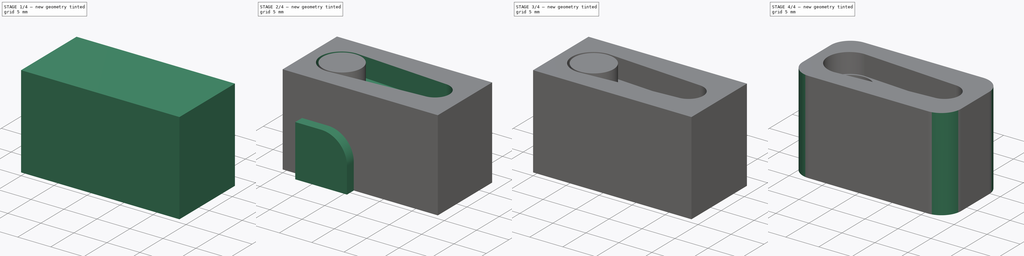
[diagram: build sequence overview — one tinted view per stage of 4, left to right]
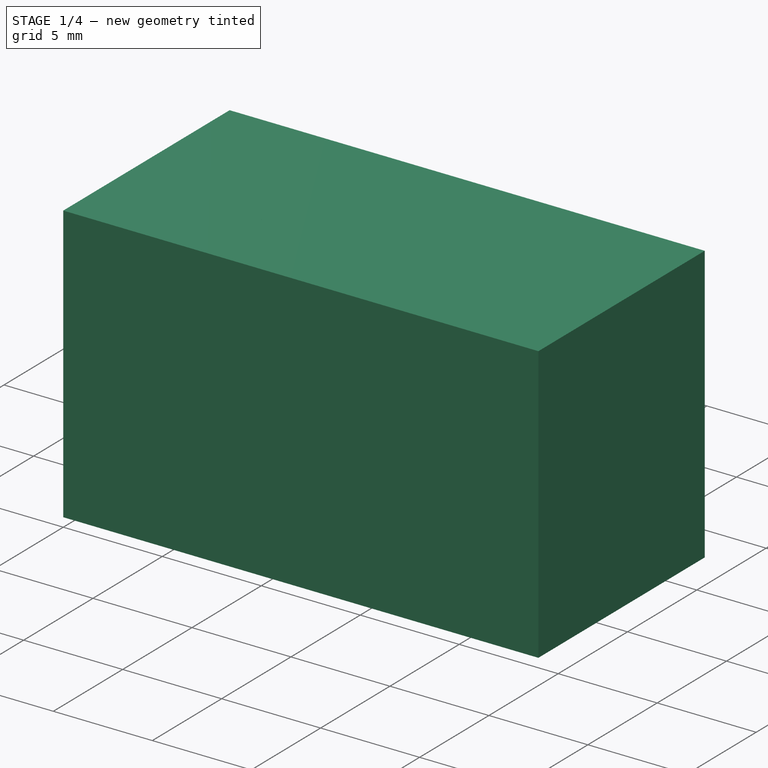
[diagram: stage 1 of 4 — iso view after this stage's code; geometry added in this stage tinted green]
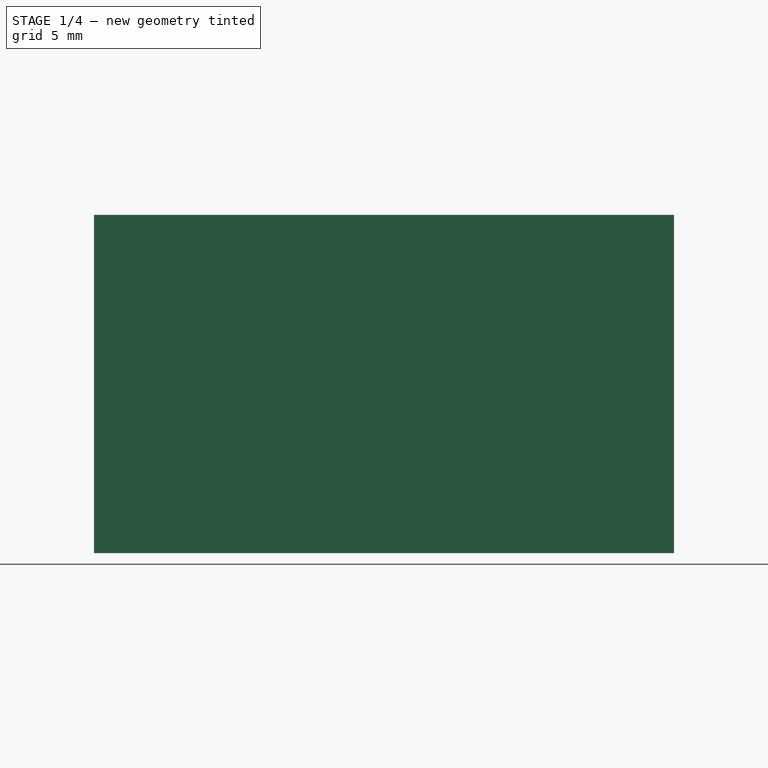
[diagram: stage 1 of 4 — front view after this stage's code; geometry added in this stage tinted green]
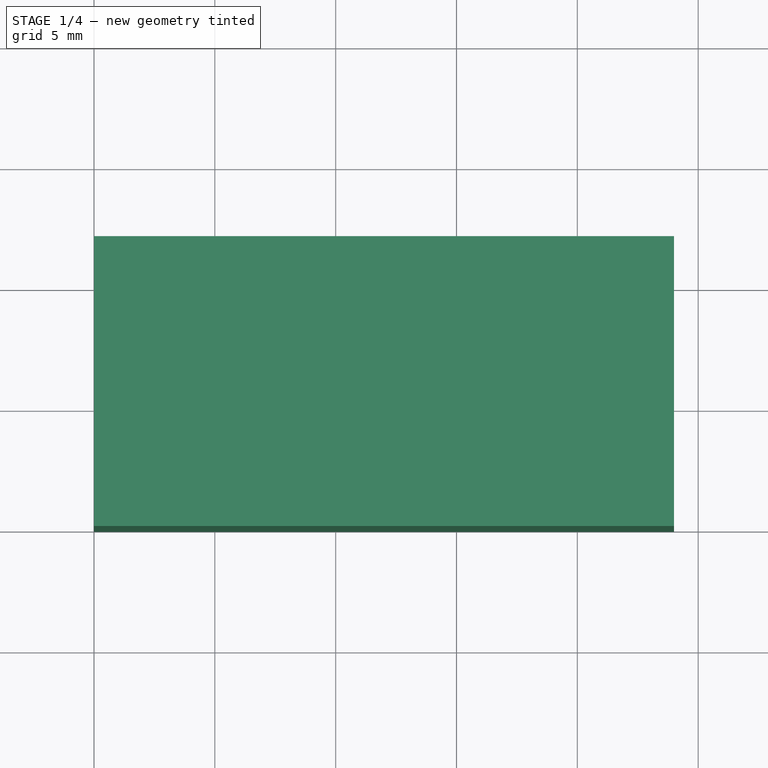
[diagram: stage 1 of 4 — top view after this stage's code; geometry added in this stage tinted green]
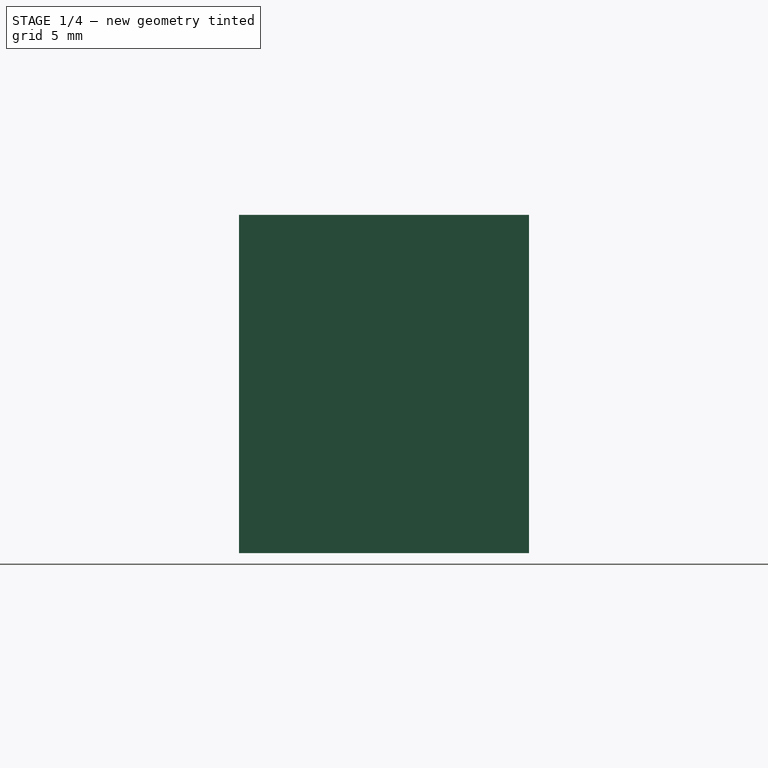
[diagram: stage 1 of 4 — right view after this stage's code; geometry added in this stage tinted green]
FCSTD DOCUMENT  (FreeCAD 0.17R13509 (Git))
Label: Engraneje_mover_motor-riego
License: CreativeCommons Attribution-ShareAlike
LicenseURL: http://creativecommons.org/licenses/by-sa/4.0/
objects: Part::Cylinder×2, Part::Box×2, Part::Fillet×2, Part::Cut×2, Part::MultiFuse×1, PartDesign::FeatureBase×1, Sketcher::SketchObject×1, PartDesign::Pocket×1, PartDesign::Body×1
note: 14 computed .brp shape members not serialized (recipe doc carries the construction recipe); baked Part::Feature solids carry a one-line shape summary decoded from their .brp

FEATURE [Part::Box] Box001  label="Cubo001"
  AttacherType = Attacher::AttachEngine3D
  Height = 14
  Length = 24
  Placement = pos=(-6,-6,0) rot=(0,0,1;0rad)
  Width = 12
FEATURE [PartDesign::FeatureBase] BaseFeature
  BaseFeature = -> Box001
FEATURE [Part::Cylinder] Cylinder001  label="Cilindro001"
  Angle = 360
  AttacherType = Attacher::AttachEngine3D
  Height = 5
  Placement = pos=(5,6,9) rot=(0,0,1;0rad)
  Radius = 3
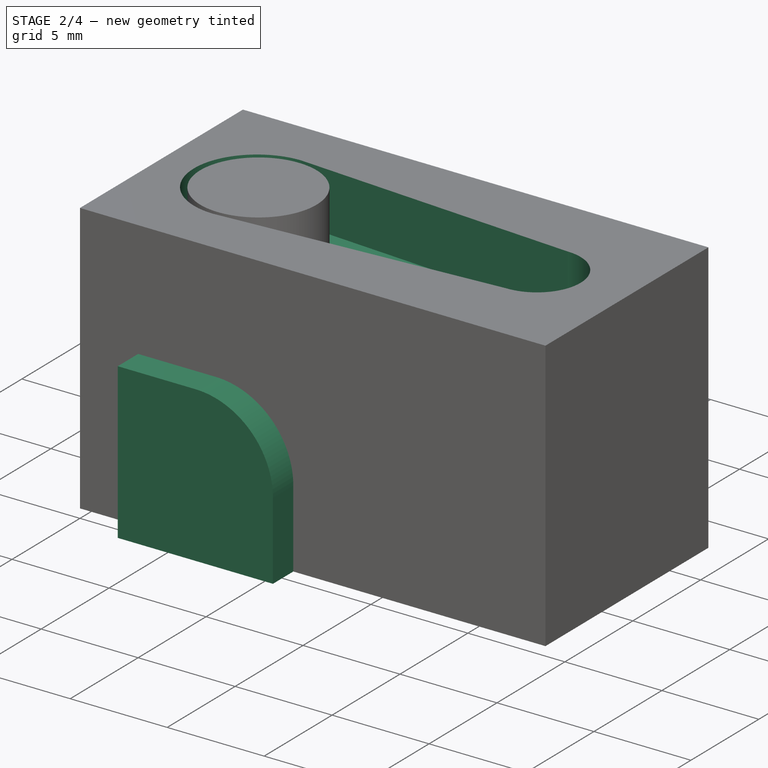
[diagram: stage 2 of 4 — iso view after this stage's code; geometry added in this stage tinted green]
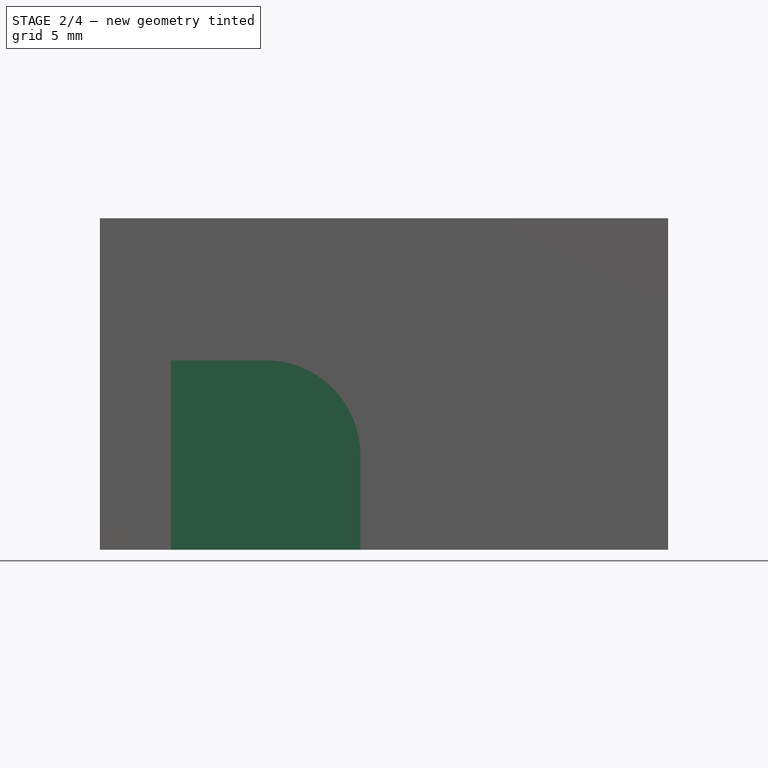
[diagram: stage 2 of 4 — front view after this stage's code; geometry added in this stage tinted green]
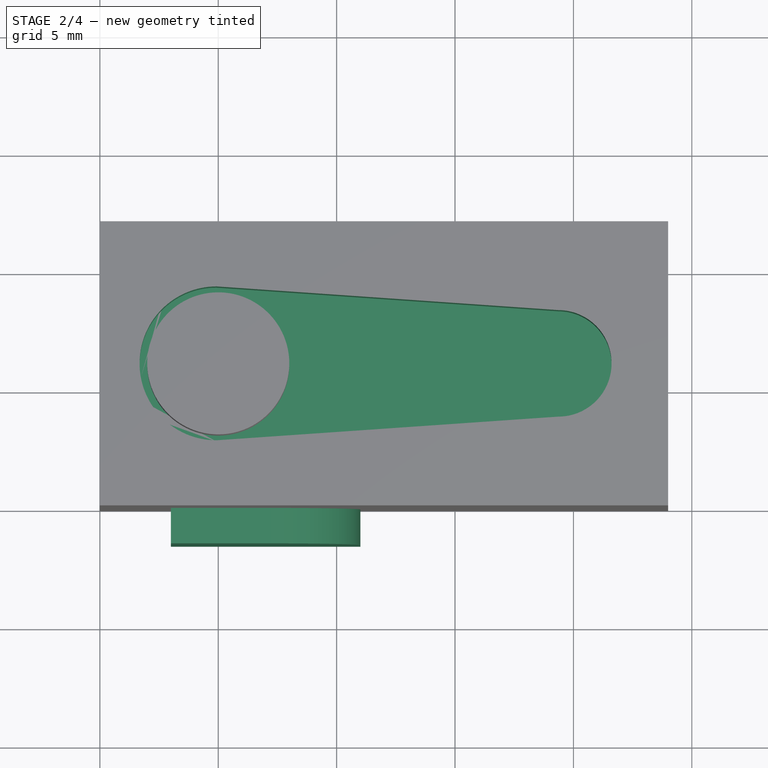
[diagram: stage 2 of 4 — top view after this stage's code; geometry added in this stage tinted green]
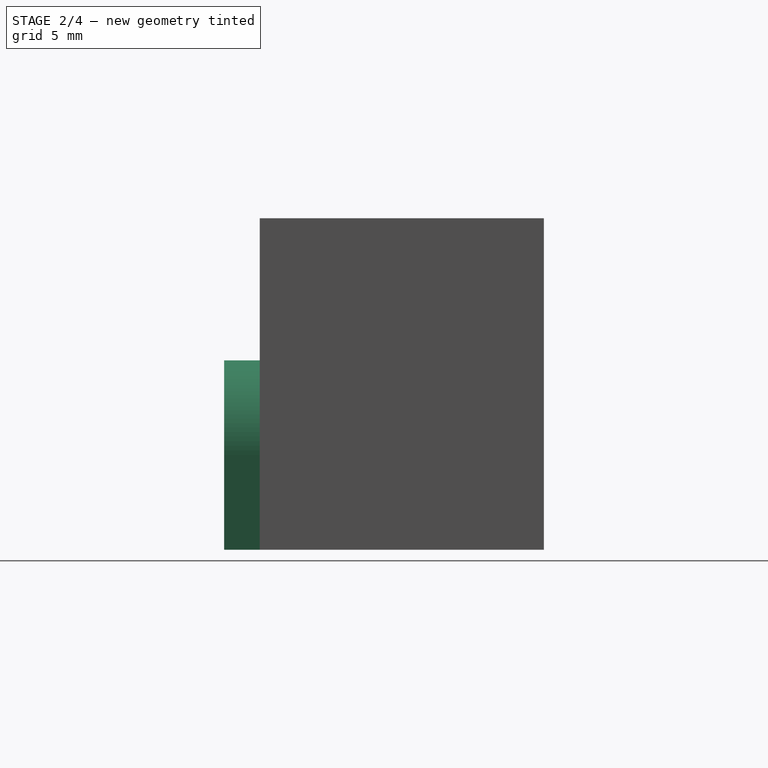
[diagram: stage 2 of 4 — right view after this stage's code; geometry added in this stage tinted green]
FEATURE [Part::Box] Box  label="Cubo"
  AttacherType = Attacher::AttachEngine3D
  Height = 8
  Length = 8
  Placement = pos=(3,-1.5,0) rot=(0,0,1;0rad)
  Width = 3
FEATURE [Part::Fillet] Fillet
  Base = -> Box
  Edges = 1 edges r=4: [Edge6]
FEATURE [Sketcher::SketchObject] Sketch
  ExternalGeometry = -> [BaseFeature]
  MapMode = 5
  Placement = pos=(0,0,14) rot=(0,0,1;0rad)
  Support = -> [BaseFeature]
  sketch-geometry (7):
    g0: LineSegment [constr] StartX=0 StartY=6 StartZ=0 EndX=20.1722 EndY=6 EndZ=0
    g1: LineSegment StartX=4.92586 StartY=9.25 StartZ=0 EndX=19.3613 EndY=8.25 EndZ=0
    g2: LineSegment StartX=4.92586 StartY=2.75 StartZ=0 EndX=19.3613 EndY=3.75 EndZ=0
    g3: ArcOfCircle CenterX=4.92586 CenterY=6 CenterZ=0 NormalX=0 NormalY=0 NormalZ=1 AngleXU=0 Radius=3.25 StartAngle=1.5708 EndAngle=4.71239
    g4: ArcOfCircle CenterX=19.3613 CenterY=6 CenterZ=0 NormalX=0 NormalY=0 NormalZ=1 AngleXU=0 Radius=2.25 StartAngle=4.71239 EndAngle=7.85398
    g5: LineSegment [constr] StartX=19.3613 StartY=8.25 StartZ=0 EndX=19.3613 EndY=3.75 EndZ=0
    g6: LineSegment [constr] StartX=4.92586 StartY=9.25 StartZ=0 EndX=4.92586 EndY=2.75 EndZ=0
  constraints (20):
    c: PointOnObject(g0,g-2)
    c: Horizontal(g0)
    c: Symmetric(g-1,g-3,g0)
    c: PointOnObject(g3,g0)
    c: Coincident(g3,g1)
    c: Coincident(g3,g2)
    c: PointOnObject(g4,g0)
    c: Coincident(g4,g1)
    c: Coincident(g4,g2)
    c: Equal(g1,g2)
    c: Radius(g3) = 3.25
    c: Radius(g4) = 2.25
    c: Distance(g1) = 14.47
    c: Coincident(g5,g1)
    c: Coincident(g5,g2)
    c: Coincident(g6,g1)
    c: Coincident(g6,g2)
    c: Vertical(g6)
    c: PointOnObject(g4,g5)
    c: PointOnObject(g3,g6)
FEATURE [PartDesign::Pocket] Pocket
  BaseFeature = -> BaseFeature
  Length = 3
  Length2 = 100
  Profile = -> Sketch
  Refine = true
  Type = 0
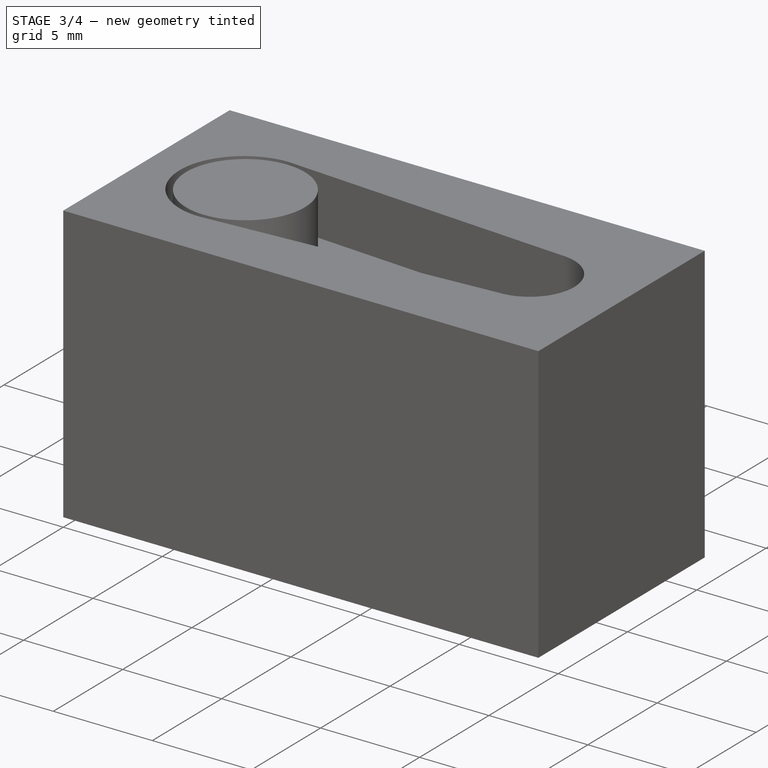
[diagram: stage 3 of 4 — iso view after this stage's code; geometry added in this stage tinted green]
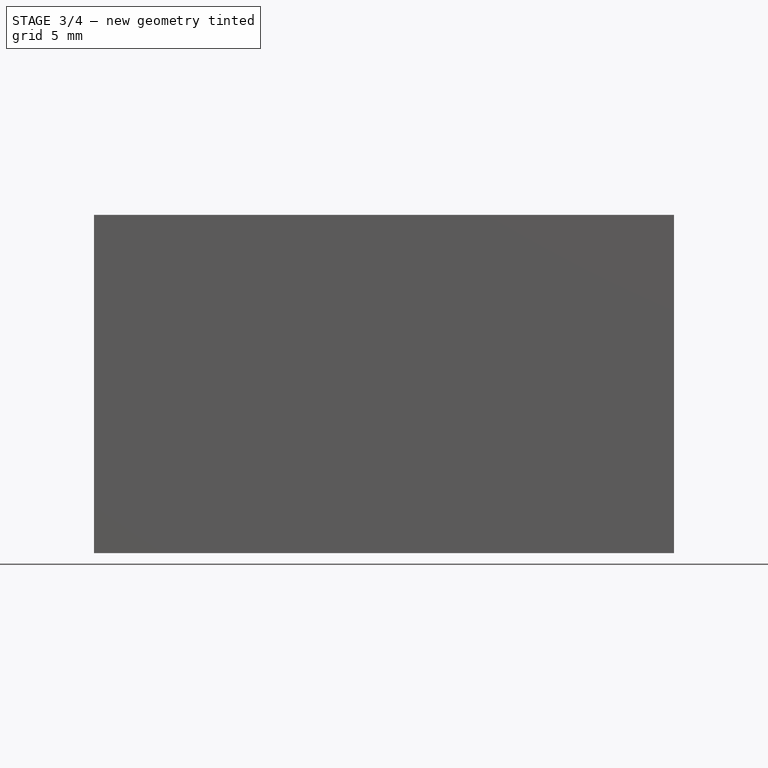
[diagram: stage 3 of 4 — front view after this stage's code; geometry added in this stage tinted green]
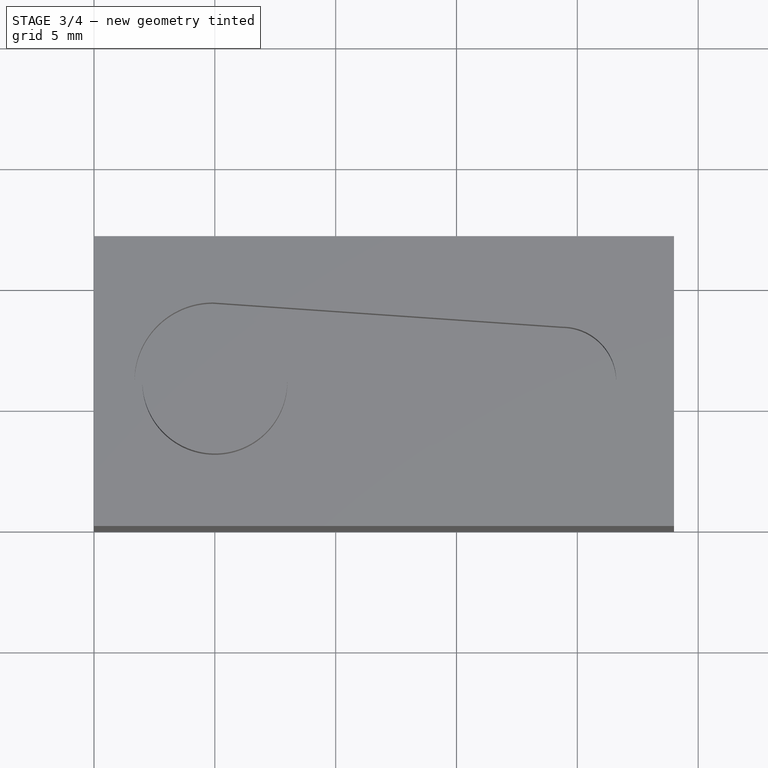
[diagram: stage 3 of 4 — top view after this stage's code; geometry added in this stage tinted green]
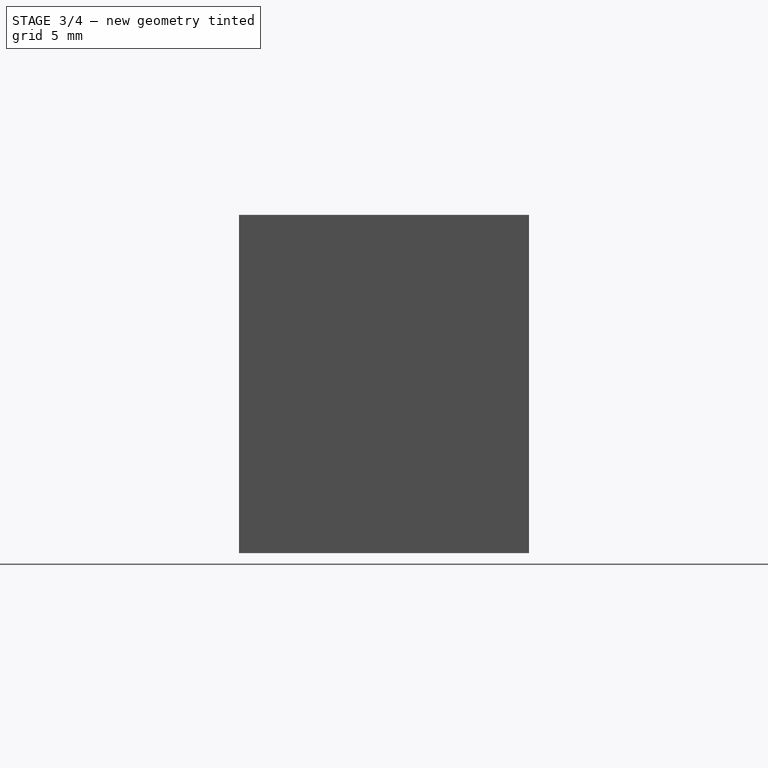
[diagram: stage 3 of 4 — right view after this stage's code; geometry added in this stage tinted green]
FEATURE [Part::Cylinder] Cylinder  label="Cilindro"
  Angle = 360
  AttacherType = Attacher::AttachEngine3D
  Height = 8
  Radius = 5
FEATURE [Part::MultiFuse] Fusion
  Placement = pos=(8,6,0) rot=(0,0,1;0rad)
  Refine = true
  Shapes = -> [Fillet,Cylinder]
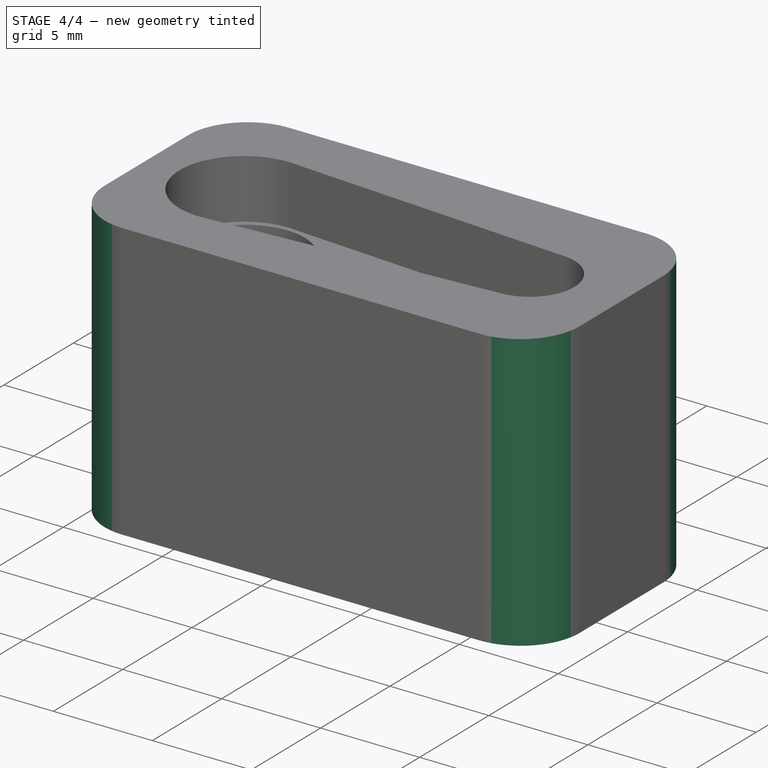
[diagram: stage 4 of 4 — iso view after this stage's code; geometry added in this stage tinted green]
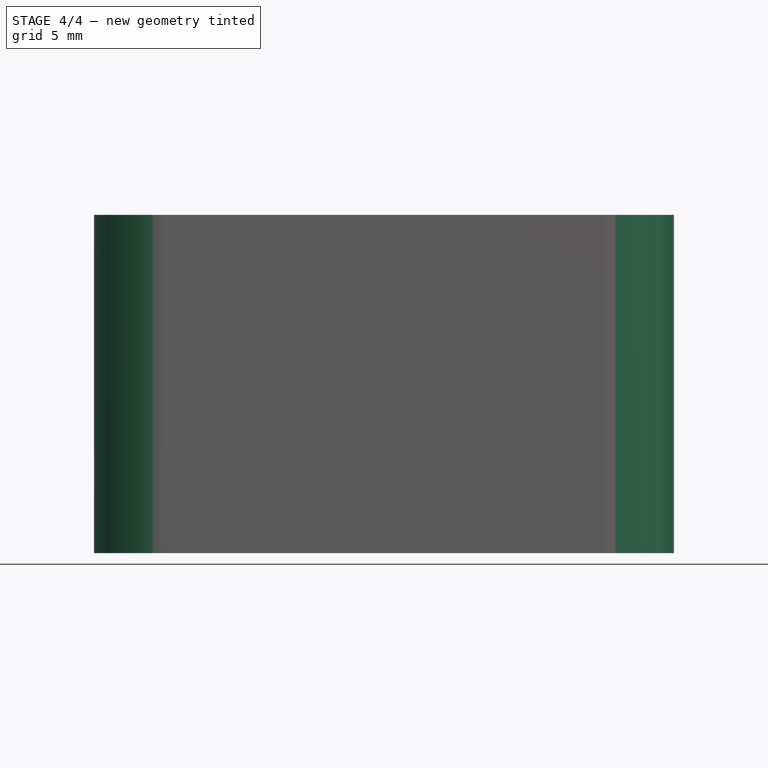
[diagram: stage 4 of 4 — front view after this stage's code; geometry added in this stage tinted green]
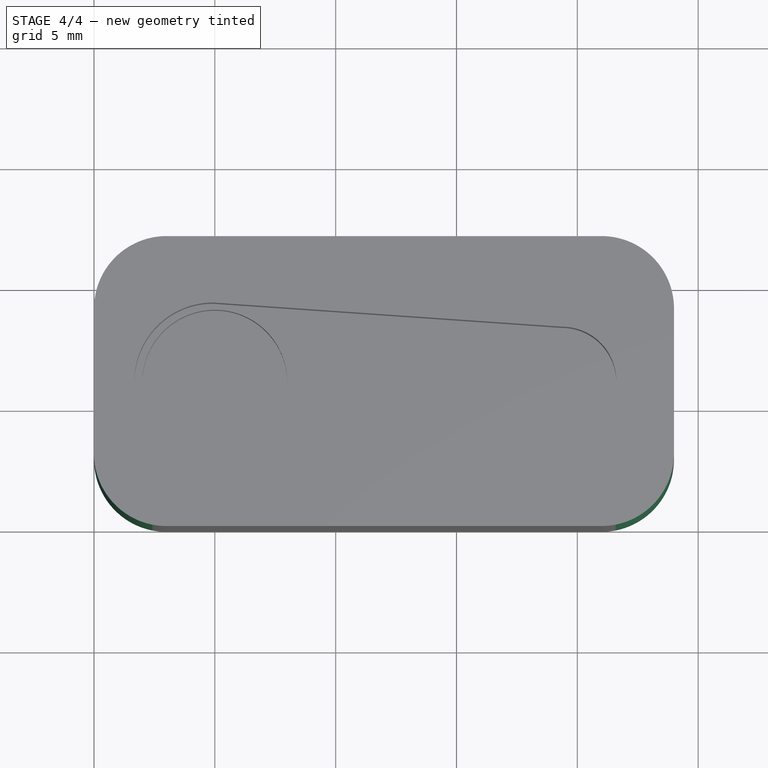
[diagram: stage 4 of 4 — top view after this stage's code; geometry added in this stage tinted green]
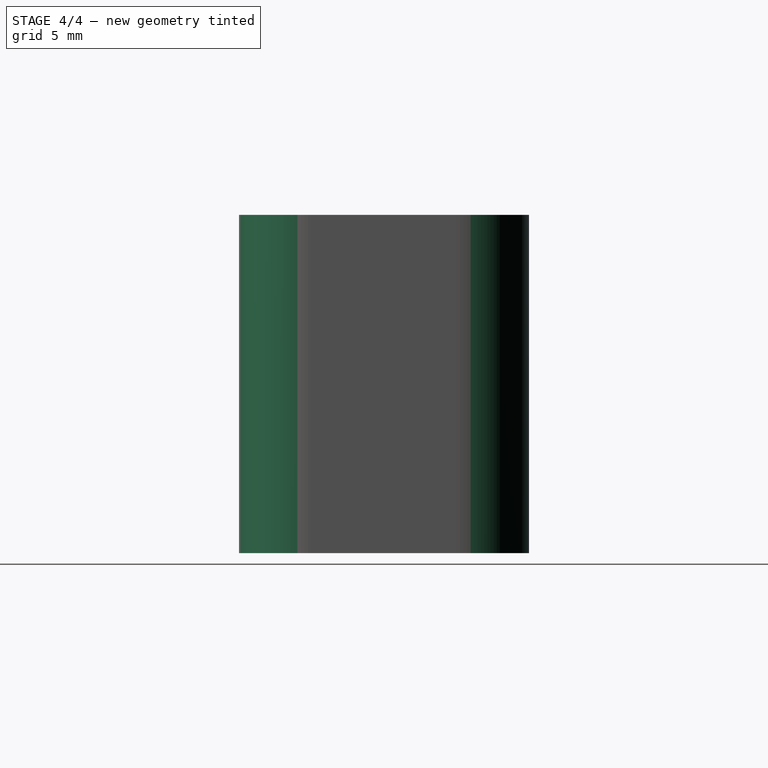
[diagram: stage 4 of 4 — right view after this stage's code; geometry added in this stage tinted green]
FEATURE [PartDesign::Body] Body
  BaseFeature = -> Box001
  Group = -> [BaseFeature,Sketch,Pocket]
  Origin = -> Origin
  Placement = pos=(-8,-5,0) rot=(0,0,1;0rad)
  Tip = -> Pocket
FEATURE [Part::Cut] Cut
  Base = -> Pocket
  Refine = true
  Tool = -> Fusion
FEATURE [Part::Cut] Cut001
  Base = -> Cut
  Refine = true
  Tool = -> Cylinder001
FEATURE [Part::Fillet] Fillet001
  Base = -> Cut001
  Edges = 4 edges r=3: [Edge1,Edge3,Edge6,Edge15]
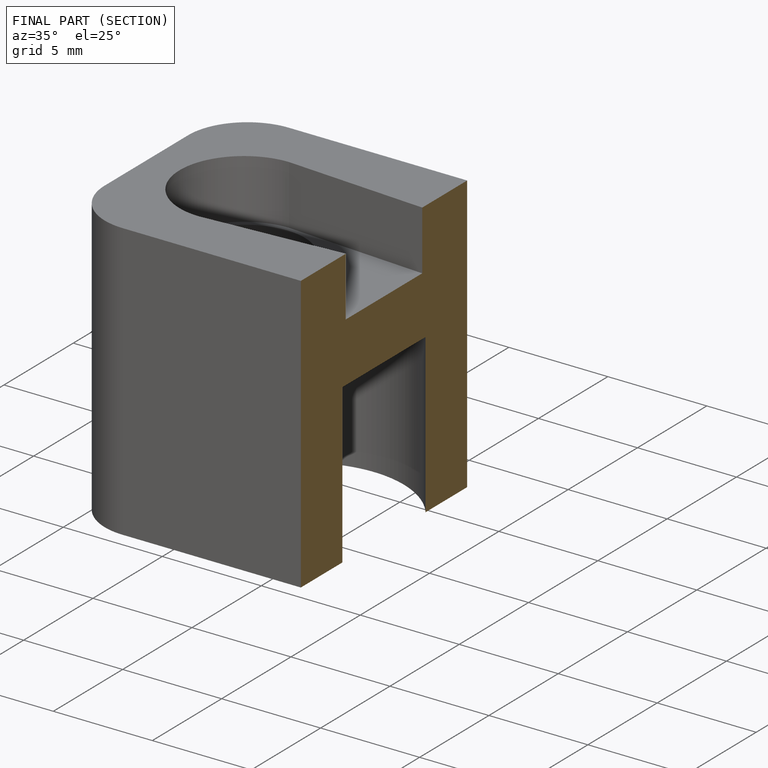
[diagram: finished part — half-section view (interior)]
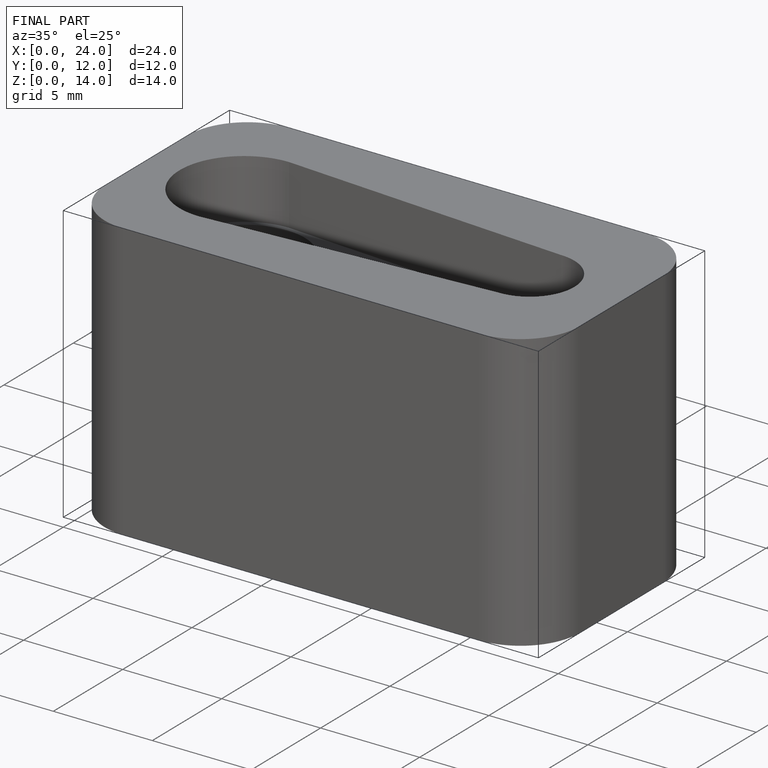
[diagram: finished part — iso view with bounding-box wireframe]
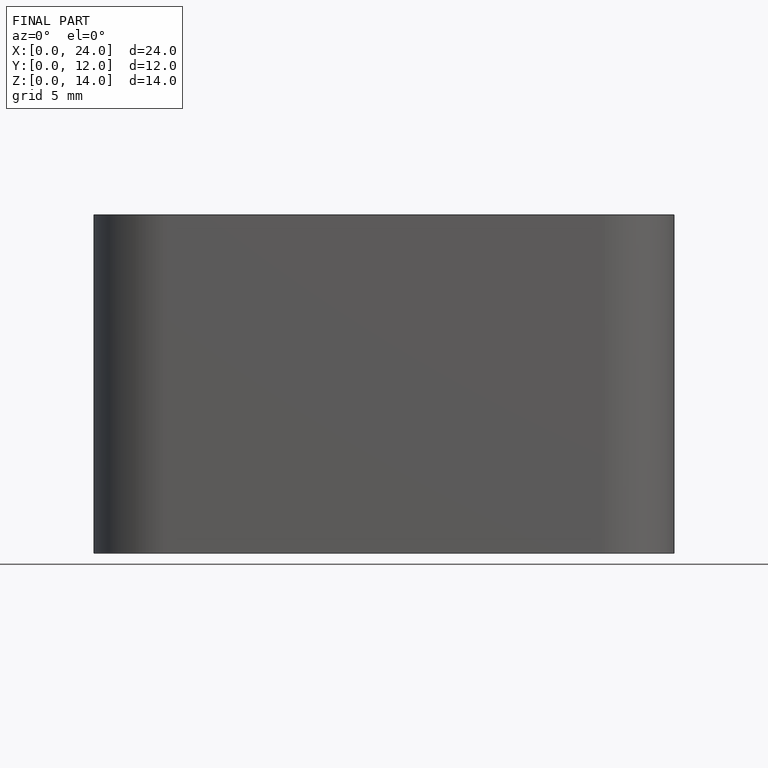
[diagram: finished part — front view with bounding-box wireframe]
